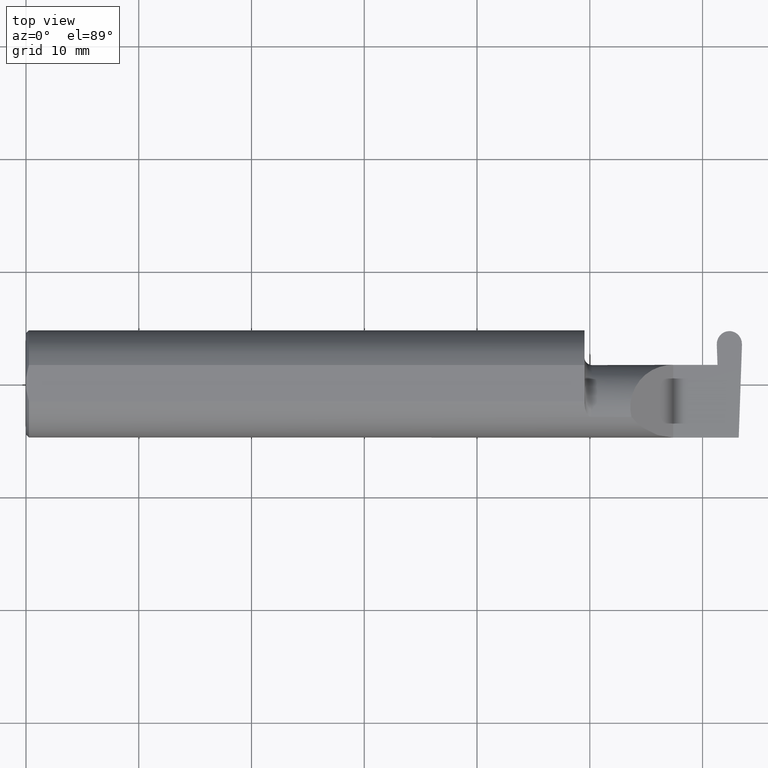
[diagram: clean part render]
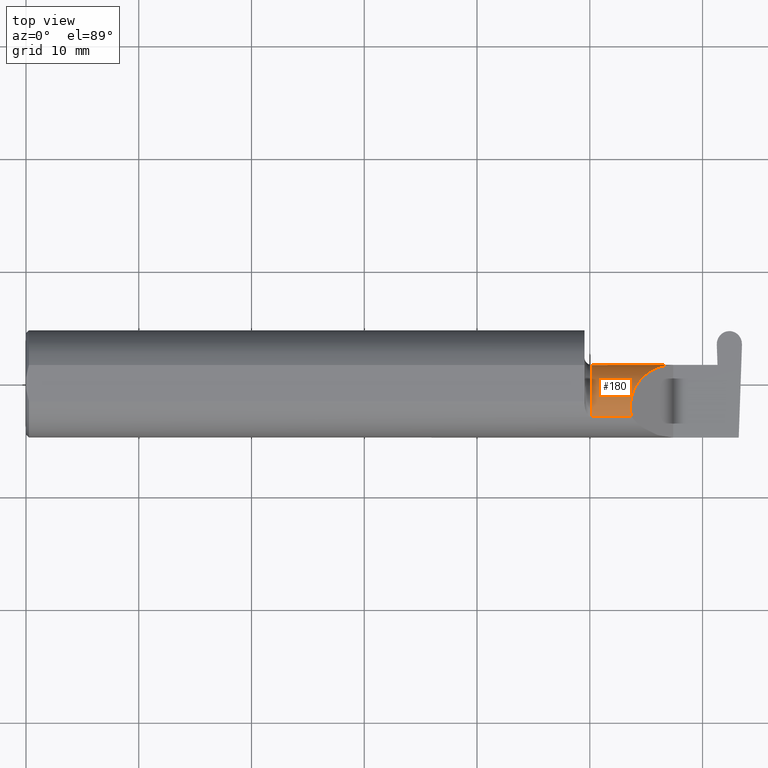
[diagram: same view with one face highlighted and labeled with its STEP entity id]
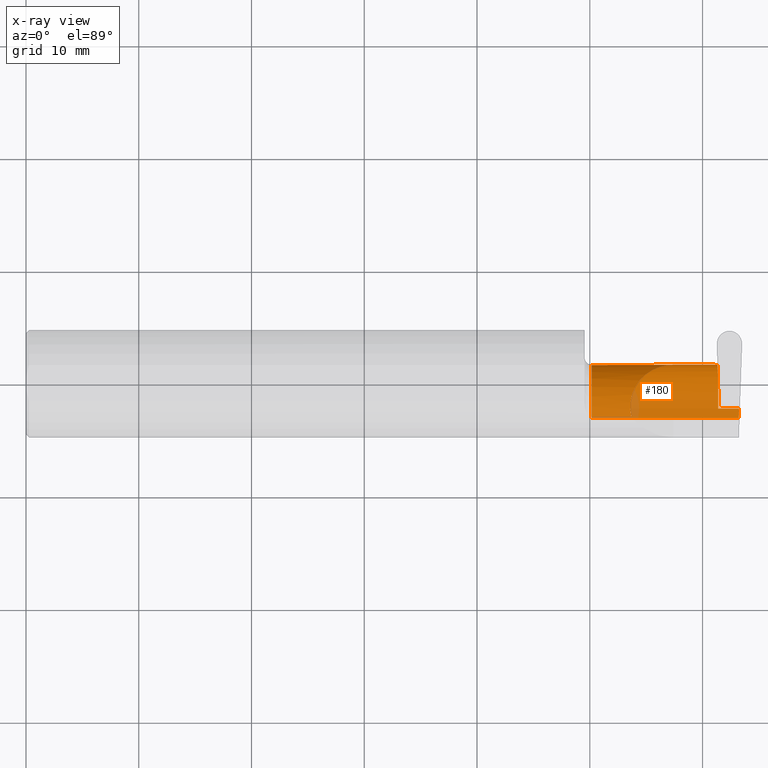
[diagram: x-ray of the same camera — body ghosted, the highlighted face saturated]
A machine part, top view. The second image highlights one B-rep face of the part: STEP entity #180.
The next image is the same camera in x-ray: the body ghosted, the highlighted face saturated — about 4% of this face is hidden behind the body in this view.
In plain terms, the highlighted cylindrical surface (partial cylindrical patch) has radius 3.81 mm, axis along (-1, -0, -0).
Its self-contained STEP definition (entity closure, byte-faithful):
#9 = CARTESIAN_POINT ( 'NONE',  ( 2.193402845000000045, -0.1172600179964006090, -0.1461167706989303927 ) ) ;
#14 = CARTESIAN_POINT ( 'NONE',  ( 2.090221225029926355, -0.01530148607434163137, 0.1697787749700727100 ) ) ;
#17 = VECTOR ( 'NONE', #435, 39.37007874015748143 ) ;
#30 = ORIENTED_EDGE ( 'NONE', *, *, #521, .F. ) ;
#41 = DIRECTION ( 'NONE',  ( -1.000000000000000000, -3.697236809793670161E-17, -0.000000000000000000 ) ) ;
#42 = EDGE_CURVE ( 'NONE', #261, #334, #204, .T. ) ;
#44 = CARTESIAN_POINT ( 'NONE',  ( 1.974999999999999867, -0.1172600179964006228, 0.1461167706989303650 ) ) ;
#45 = CARTESIAN_POINT ( 'NONE',  ( 2.489189135516857831, -0.09477667630339421667, -0.1500000000000000500 ) ) ;
#48 = CARTESIAN_POINT ( 'NONE',  ( 2.405147528298442694, 0.06655862405286415429, -0.005234924505382223224 ) ) ;
#50 = CARTESIAN_POINT ( 'NONE',  ( 2.733184360054361939, -0.08335000000000006293, -0.1500000000000000500 ) ) ;
#51 = CARTESIAN_POINT ( 'NONE',  ( 2.489588163846105484, -0.08335000000000006293, -0.1500000000000000500 ) ) ;
#55 = VECTOR ( 'NONE', #654, 39.37007874015748143 ) ;
#62 = EDGE_CURVE ( 'NONE', #468, #261, #609, .T. ) ;
#67 = CARTESIAN_POINT ( 'NONE',  ( 2.155331797197862720, 0.06665000000000004254, 0.1046682028021360955 ) ) ;
#83 = ORIENTED_EDGE ( 'NONE', *, *, #657, .F. ) ;
#84 = LINE ( 'NONE', #596, #330 ) ;
#91 =( BOUNDED_CURVE ( )  B_SPLINE_CURVE ( 3, ( #120, #14, #67, #610 ),
 .UNSPECIFIED., .F., .T. ) 
 B_SPLINE_CURVE_WITH_KNOTS ( ( 4, 4 ),
 ( 6.055147272130142255, 7.853981633974482790 ),
 .UNSPECIFIED. ) 
 CURVE ( )  GEOMETRIC_REPRESENTATION_ITEM ( )  RATIONAL_B_SPLINE_CURVE ( ( 1.000000000000000000, 0.7480442670255268434, 0.7480442670255268434, 1.000000000000000000 ) ) 
 REPRESENTATION_ITEM ( '' )  );
#95 = ORIENTED_EDGE ( 'NONE', *, *, #369, .T. ) ;
#108 = CARTESIAN_POINT ( 'NONE',  ( 2.405208445596533462, 0.06661954135095465857, -0.001744974835127408464 ) ) ;
#120 = CARTESIAN_POINT ( 'NONE',  ( 2.113883229301068312, -0.1172600179964006784, 0.1461167706989302539 ) ) ;
#122 = B_SPLINE_CURVE_WITH_KNOTS ( 'NONE', 3,
 ( #48, #253, #108, #702 ),
 .UNSPECIFIED., .F., .F.,
 ( 4, 4 ),
 ( 0.000000000000000000, 1.000000000000000000 ),
 .UNSPECIFIED. ) ;
#138 = DIRECTION ( 'NONE',  ( -1.000000000000000000, -3.697236809793670161E-17, -0.000000000000000000 ) ) ;
#139 = EDGE_CURVE ( 'NONE', #177, #461, #84, .T. ) ;
#177 = VERTEX_POINT ( 'NONE', #44 ) ;
#180 = ADVANCED_FACE ( 'NONE', ( #585 ), #205, .T. ) ;
#185 =( BOUNDED_CURVE ( )  B_SPLINE_CURVE ( 3, ( #477, #549, #45, #51 ),
 .UNSPECIFIED., .F., .T. ) 
 B_SPLINE_CURVE_WITH_KNOTS ( ( 4, 4 ),
 ( 0.8789888184544055738, 1.107026853503848773 ),
 .UNSPECIFIED. ) 
 CURVE ( )  GEOMETRIC_REPRESENTATION_ITEM ( )  RATIONAL_B_SPLINE_CURVE ( ( 1.000000000000000000, 0.9956712472009929815, 0.9956712472009929815, 1.000000000000000000 ) ) 
 REPRESENTATION_ITEM ( '' )  );
#204 = LINE ( 'NONE', #417, #55 ) ;
#205 = CYLINDRICAL_SURFACE ( 'NONE', #258, 0.1500000000000000500 ) ;
#219 = DIRECTION ( 'NONE',  ( -1.000000000000000000, -3.697236809793670161E-17, -0.000000000000000000 ) ) ;
#240 = EDGE_CURVE ( 'NONE', #546, #296, #308, .T. ) ;
#242 = ORIENTED_EDGE ( 'NONE', *, *, #600, .F. ) ;
#253 = CARTESIAN_POINT ( 'NONE',  ( 2.405177986947488300, 0.06658908270190941336, -0.003489949670254817362 ) ) ;
#256 = DIRECTION ( 'NONE',  ( 0.000000000000000000, -1.000000000000000000, 0.000000000000000000 ) ) ;
#257 = CARTESIAN_POINT ( 'NONE',  ( 2.415998328610626800, 0.06357628547474564185, -0.09063792740366213851 ) ) ;
#258 = AXIS2_PLACEMENT_3D ( 'NONE', #648, #138, #704 ) ;
#261 = VERTEX_POINT ( 'NONE', #688 ) ;
#296 = VERTEX_POINT ( 'NONE', #386 ) ;
#303 = DIRECTION ( 'NONE',  ( 1.000000000000000000, 3.697236809793670161E-17, 0.000000000000000000 ) ) ;
#308 = LINE ( 'NONE', #418, #315 ) ;
#310 = CARTESIAN_POINT ( 'NONE',  ( 2.417117327835069940, -0.08334999999999997966, -0.1500000000000000500 ) ) ;
#311 = CIRCLE ( 'NONE', #685, 0.1500000000000000500 ) ;
#315 = VECTOR ( 'NONE', #535, 39.37007874015748143 ) ;
#318 = EDGE_CURVE ( 'NONE', #340, #468, #548, .T. ) ;
#324 = CARTESIAN_POINT ( 'NONE',  ( 2.417090374579074386, 0.002105059811797841893, -0.1500000000000000777 ) ) ;
#326 = LINE ( 'NONE', #9, #567 ) ;
#330 = VECTOR ( 'NONE', #303, 39.37007874015748143 ) ;
#334 = VERTEX_POINT ( 'NONE', #494 ) ;
#340 = VERTEX_POINT ( 'NONE', #380 ) ;
#348 = ORIENTED_EDGE ( 'NONE', *, *, #240, .T. ) ;
#363 = CARTESIAN_POINT ( 'NONE',  ( 1.974999999999999867, -0.08334999999999999354, 0.000000000000000000 ) ) ;
#369 = EDGE_CURVE ( 'NONE', #376, #453, #326, .T. ) ;
#376 = VERTEX_POINT ( 'NONE', #441 ) ;
#380 = CARTESIAN_POINT ( 'NONE',  ( 2.489588163846105484, -0.08335000000000006293, -0.1500000000000000500 ) ) ;
#386 = CARTESIAN_POINT ( 'NONE',  ( 2.405238904245578624, 0.06664999999999991764, 0.000000000000000000 ) ) ;
#417 = CARTESIAN_POINT ( 'NONE',  ( 1.949999999999999956, 0.06655862405286419592, -0.005234924505381327239 ) ) ;
#418 = CARTESIAN_POINT ( 'NONE',  ( 1.949999999999999956, 0.06665000000000002867, 6.735557395310446214E-17 ) ) ;
#422 = CARTESIAN_POINT ( 'NONE',  ( 2.260000000000000231, 0.06665000000000002867, 6.735557395310446214E-17 ) ) ;
#435 = DIRECTION ( 'NONE',  ( -1.000000000000000000, -0.000000000000000000, -0.000000000000000000 ) ) ;
#441 = CARTESIAN_POINT ( 'NONE',  ( 2.488471823259917226, -0.1172600179964005951, -0.1461167706989303927 ) ) ;
#451 = EDGE_LOOP ( 'NONE', ( #95, #83, #708, #613, #348, #30, #626, #639, #667, #242 ) ) ;
#453 = VERTEX_POINT ( 'NONE', #516 ) ;
#461 = VERTEX_POINT ( 'NONE', #625 ) ;
#468 = VERTEX_POINT ( 'NONE', #691 ) ;
#477 = CARTESIAN_POINT ( 'NONE',  ( 2.488471823259917226, -0.1172600179964005951, -0.1461167706989303927 ) ) ;
#494 = CARTESIAN_POINT ( 'NONE',  ( 2.405147528298442694, 0.06655862405286415429, -0.005234924505382223224 ) ) ;
#516 = CARTESIAN_POINT ( 'NONE',  ( 1.974999999999999867, -0.1172600179964006090, -0.1461167706989303927 ) ) ;
#521 = EDGE_CURVE ( 'NONE', #334, #296, #122, .T. ) ;
#535 = DIRECTION ( 'NONE',  ( 1.000000000000000000, 3.697236809793670161E-17, 0.000000000000000000 ) ) ;
#546 = VERTEX_POINT ( 'NONE', #422 ) ;
#548 = LINE ( 'NONE', #50, #17 ) ;
#549 = CARTESIAN_POINT ( 'NONE',  ( 2.488815404197634251, -0.1061291577212408743, -0.1486999626928446339 ) ) ;
#567 = VECTOR ( 'NONE', #219, 39.37007874015748143 ) ;
#585 = FACE_OUTER_BOUND ( 'NONE', #451, .T. ) ;
#596 = CARTESIAN_POINT ( 'NONE',  ( 2.193402845000000045, -0.1172600179964006090, 0.1461167706989303927 ) ) ;
#600 = EDGE_CURVE ( 'NONE', #376, #340, #185, .T. ) ;
#609 =( BOUNDED_CURVE ( )  B_SPLINE_CURVE ( 3, ( #310, #324, #257, #703 ),
 .UNSPECIFIED., .F., .T. ) 
 B_SPLINE_CURVE_WITH_KNOTS ( ( 4, 4 ),
 ( 3.159045946109734437, 4.694935687864689733 ),
 .UNSPECIFIED. ) 
 CURVE ( )  GEOMETRIC_REPRESENTATION_ITEM ( )  RATIONAL_B_SPLINE_CURVE ( ( 1.000000000000000000, 0.8128932002257800438, 0.8128932002257800438, 1.000000000000000000 ) ) 
 REPRESENTATION_ITEM ( '' )  );
#610 = CARTESIAN_POINT ( 'NONE',  ( 2.260000000000000231, 0.06665000000000002867, 6.735557395310446214E-17 ) ) ;
#613 = ORIENTED_EDGE ( 'NONE', *, *, #674, .T. ) ;
#625 = CARTESIAN_POINT ( 'NONE',  ( 2.113883229301068312, -0.1172600179964006784, 0.1461167706989302539 ) ) ;
#626 = ORIENTED_EDGE ( 'NONE', *, *, #42, .F. ) ;
#639 = ORIENTED_EDGE ( 'NONE', *, *, #62, .F. ) ;
#648 = CARTESIAN_POINT ( 'NONE',  ( 1.949999999999999956, -0.08334999999999999354, 0.000000000000000000 ) ) ;
#654 = DIRECTION ( 'NONE',  ( -1.000000000000000000, -3.697236809793670161E-17, -0.000000000000000000 ) ) ;
#657 = EDGE_CURVE ( 'NONE', #177, #453, #311, .T. ) ;
#667 = ORIENTED_EDGE ( 'NONE', *, *, #318, .F. ) ;
#674 = EDGE_CURVE ( 'NONE', #461, #546, #91, .T. ) ;
#685 = AXIS2_PLACEMENT_3D ( 'NONE', #363, #41, #256 ) ;
#688 = CARTESIAN_POINT ( 'NONE',  ( 2.414454177608814867, 0.06655862405286415429, -0.005234924505383332580 ) ) ;
#691 = CARTESIAN_POINT ( 'NONE',  ( 2.417117327835069940, -0.08334999999999997966, -0.1500000000000000500 ) ) ;
#702 = CARTESIAN_POINT ( 'NONE',  ( 2.405238904245578624, 0.06664999999999991764, 0.000000000000000000 ) ) ;
#703 = CARTESIAN_POINT ( 'NONE',  ( 2.414454177608814867, 0.06655862405286415429, -0.005234924505383332580 ) ) ;
#704 = DIRECTION ( 'NONE',  ( 0.000000000000000000, -1.000000000000000000, 0.000000000000000000 ) ) ;
#708 = ORIENTED_EDGE ( 'NONE', *, *, #139, .T. ) ;